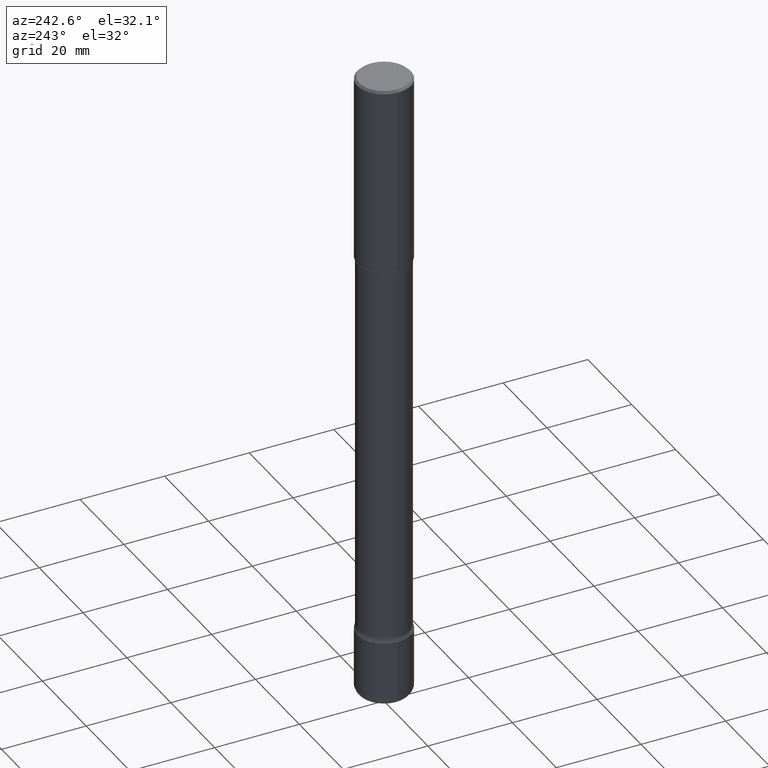
[diagram: clean part render]
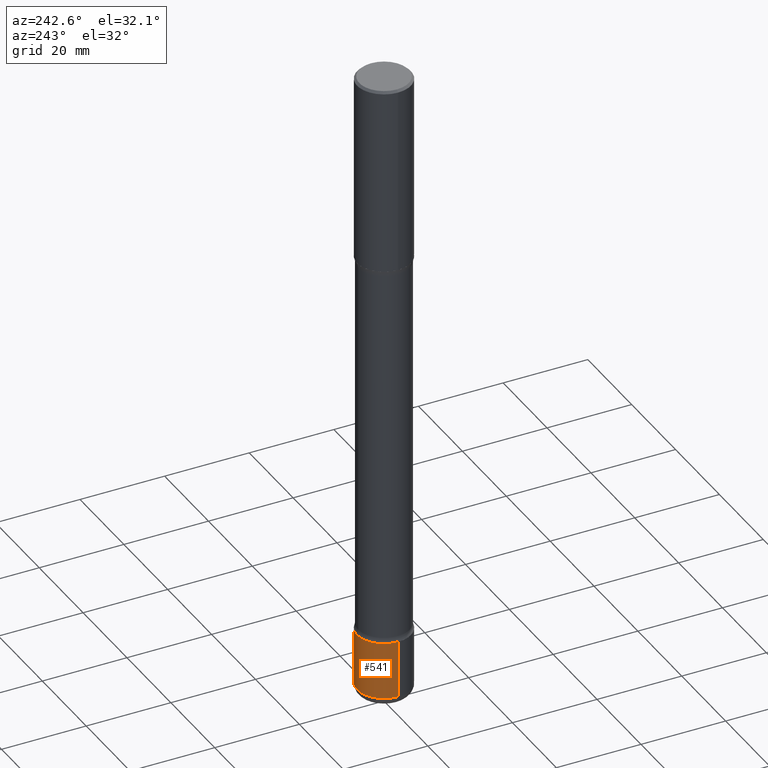
[diagram: same view with one face highlighted and labeled with its STEP entity id]
A machine part, auxiliary view. The second image highlights one B-rep face of the part: STEP entity #541.
In plain terms, the highlighted cylindrical surface (edge-blend (fillet) strip) has radius 6.35 mm, axis along (-0, 0, 1).
Its self-contained STEP definition (entity closure, byte-faithful):
#2 = FACE_OUTER_BOUND ( 'NONE', #89, .T. ) ;
#34 = CIRCLE ( 'NONE', #146, 0.2500000000000005551 ) ;
#38 = LINE ( 'NONE', #518, #51 ) ;
#50 = EDGE_CURVE ( 'NONE', #355, #387, #538, .T. ) ;
#51 = VECTOR ( 'NONE', #482, 39.37007874015748143 ) ;
#89 = EDGE_LOOP ( 'NONE', ( #536, #294, #181, #428 ) ) ;
#95 = CARTESIAN_POINT ( 'NONE',  ( 0.2500000000000006661, -2.238039538198456243E-14, -5.910000000000001030 ) ) ;
#100 = DIRECTION ( 'NONE',  ( -2.445468806185136597E-29, 3.491481338843145583E-15, 1.000000000000000000 ) ) ;
#102 = CARTESIAN_POINT ( 'NONE',  ( 1.314439483324511369E-28, -1.876671219628191278E-14, -5.375000000000001776 ) ) ;
#111 = EDGE_CURVE ( 'NONE', #523, #521, #34, .T. ) ;
#121 = AXIS2_PLACEMENT_3D ( 'NONE', #182, #189, #349 ) ;
#146 = AXIS2_PLACEMENT_3D ( 'NONE', #539, #100, #371 ) ;
#176 = CARTESIAN_POINT ( 'NONE',  ( 0.2500000000000002776, -2.051245286570348262E-14, -5.375000000000001776 ) ) ;
#181 = ORIENTED_EDGE ( 'NONE', *, *, #50, .F. ) ;
#182 = CARTESIAN_POINT ( 'NONE',  ( 0.000000000000000000, 0.000000000000000000, 0.000000000000000000 ) ) ;
#189 = DIRECTION ( 'NONE',  ( -2.445468806185136597E-29, 3.491481338843145583E-15, 1.000000000000000000 ) ) ;
#195 = LINE ( 'NONE', #398, #318 ) ;
#210 = EDGE_CURVE ( 'NONE', #521, #387, #195, .T. ) ;
#222 = DIRECTION ( 'NONE',  ( 1.000000000000000000, -6.982962677686270655E-15, 0.000000000000000000 ) ) ;
#245 = CARTESIAN_POINT ( 'NONE',  ( -0.2500000000000002776, -1.792432661502220065E-14, -5.375000000000001776 ) ) ;
#278 = CYLINDRICAL_SURFACE ( 'NONE', #121, 0.2500000000000003886 ) ;
#287 = DIRECTION ( 'NONE',  ( -2.445468806185136597E-29, 3.491481338843145583E-15, 1.000000000000000000 ) ) ;
#294 = ORIENTED_EDGE ( 'NONE', *, *, #210, .T. ) ;
#318 = VECTOR ( 'NONE', #488, 39.37007874015748143 ) ;
#328 = CARTESIAN_POINT ( 'NONE',  ( -0.2500000000000006661, -1.885829787316274213E-14, -5.910000000000001030 ) ) ;
#349 = DIRECTION ( 'NONE',  ( 1.000000000000000000, -6.982962677686267499E-15, 4.876176775795935793E-29 ) ) ;
#355 = VERTEX_POINT ( 'NONE', #176 ) ;
#371 = DIRECTION ( 'NONE',  ( 1.000000000000000000, -6.982962677686262766E-15, 0.000000000000000000 ) ) ;
#387 = VERTEX_POINT ( 'NONE', #245 ) ;
#392 = AXIS2_PLACEMENT_3D ( 'NONE', #102, #287, #222 ) ;
#398 = CARTESIAN_POINT ( 'NONE',  ( -0.2500000000000003886, 1.776356839400253226E-15, -1.229733772563728407E-29 ) ) ;
#428 = ORIENTED_EDGE ( 'NONE', *, *, #537, .F. ) ;
#482 = DIRECTION ( 'NONE',  ( -2.445468806185136877E-29, 3.491481338843145188E-15, 1.000000000000000000 ) ) ;
#488 = DIRECTION ( 'NONE',  ( -2.445468806185136877E-29, 3.491481338843145188E-15, 1.000000000000000000 ) ) ;
#518 = CARTESIAN_POINT ( 'NONE',  ( 0.2500000000000003886, -1.745740669421569636E-15, 1.219044193948985910E-29 ) ) ;
#521 = VERTEX_POINT ( 'NONE', #328 ) ;
#523 = VERTEX_POINT ( 'NONE', #95 ) ;
#536 = ORIENTED_EDGE ( 'NONE', *, *, #111, .T. ) ;
#537 = EDGE_CURVE ( 'NONE', #523, #355, #38, .T. ) ;
#538 = CIRCLE ( 'NONE', #392, 0.2500000000000002776 ) ;
#539 = CARTESIAN_POINT ( 'NONE',  ( 1.445272064455416016E-28, -2.063465471256299260E-14, -5.910000000000001030 ) ) ;
#541 = ADVANCED_FACE ( 'NONE', ( #2 ), #278, .T. ) ;